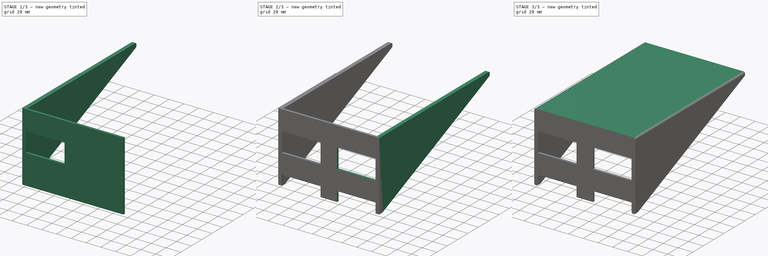
[diagram: build sequence overview — one tinted view per stage of 3, left to right]
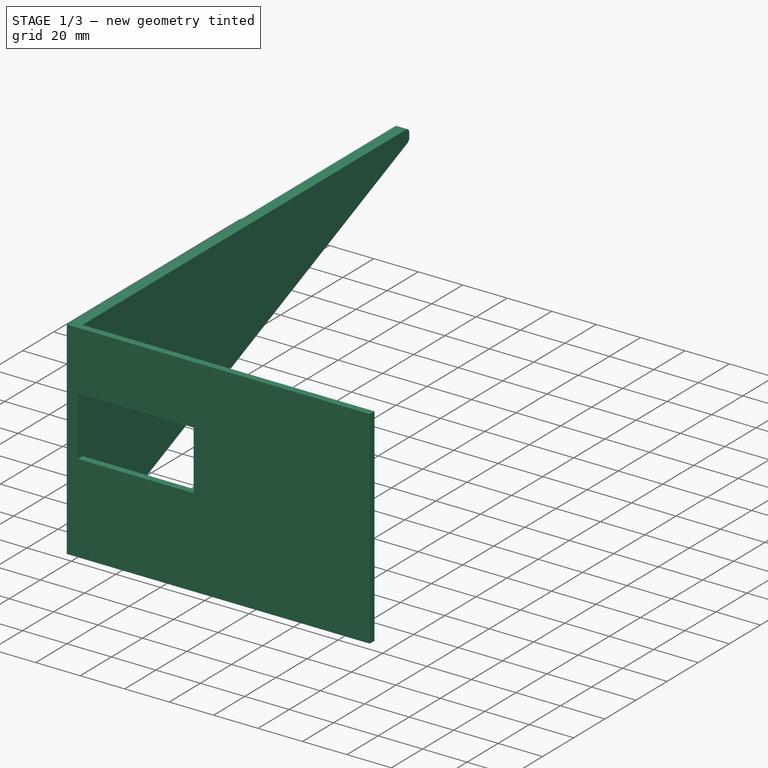
[diagram: stage 1 of 3 — iso view after this stage's code; geometry added in this stage tinted green]
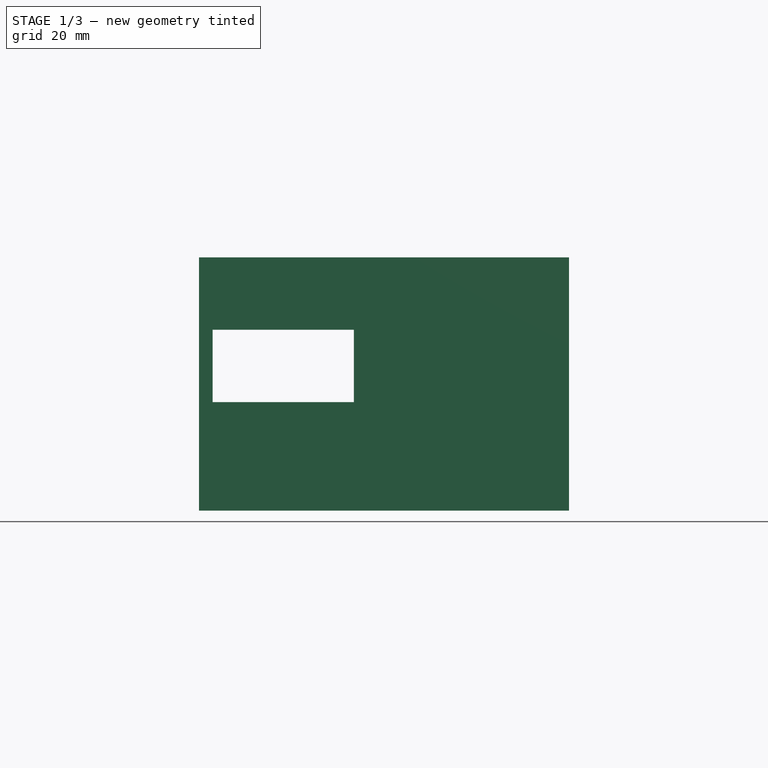
[diagram: stage 1 of 3 — front view after this stage's code; geometry added in this stage tinted green]
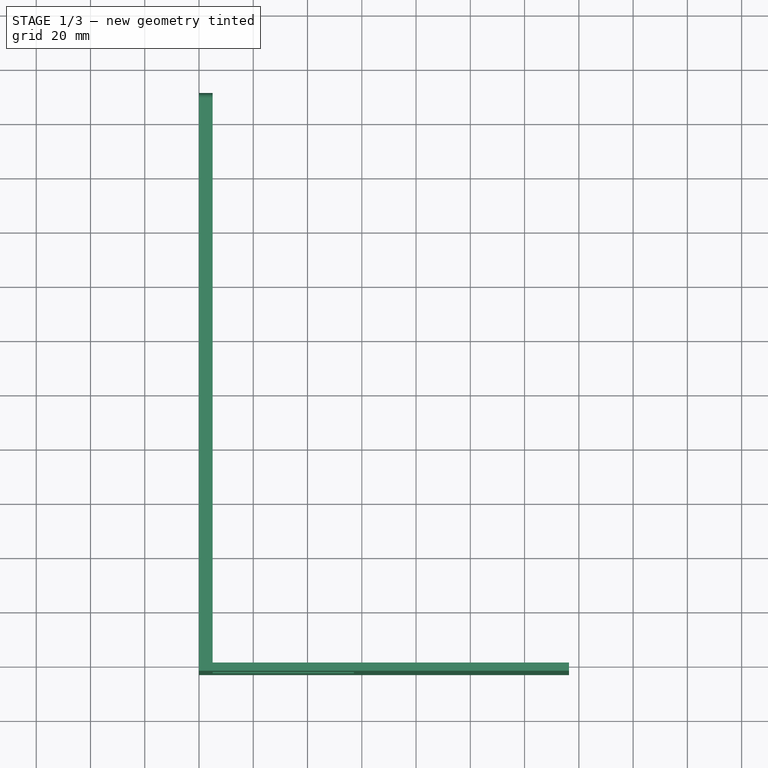
[diagram: stage 1 of 3 — top view after this stage's code; geometry added in this stage tinted green]
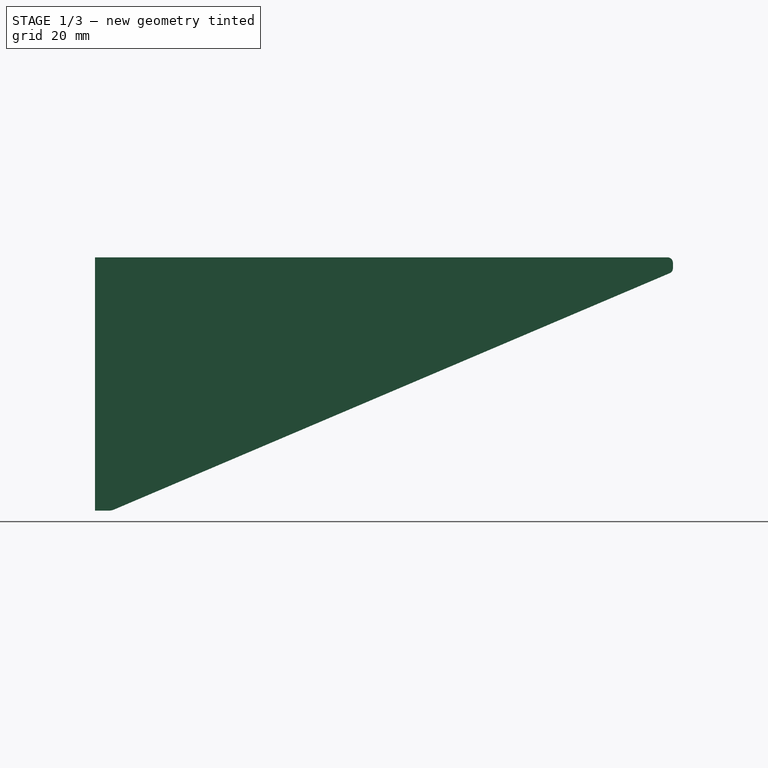
[diagram: stage 1 of 3 — right view after this stage's code; geometry added in this stage tinted green]
FCSTD DOCUMENT  (FreeCAD 0.19R24291 (Git))
Label: SecureItParameterizedShelf
License: All rights reserved
LicenseURL: http://en.wikipedia.org/wiki/All_rights_reserved
objects: Sketcher::SketchObject×4, PartDesign::Pad×3, PartDesign::LinearPattern×3, PartDesign::MultiTransform×2, PartDesign::Fillet×2, Spreadsheet::Sheet×1, PartDesign::Pocket×1, PartDesign::Body×1
note: 22 computed .brp shape members not serialized (recipe doc carries the construction recipe); baked Part::Feature solids carry a one-line shape summary decoded from their .brp

FEATURE [Spreadsheet::Sheet] Spreadsheet  label="Settings"
  cells = A1=ShelfDepth; B1(ShelfDepth)=210; D1=TightTolerance; E1(TightTolerance)==0.2mm; G1=SecureItSlotWidth; H1(SecureItSlotWidth)==2.05in; A2=ShelfWidthInInterfaces; B2(ShelfWidthInInterfaces)=2; D2=LooseTolerance; E2(LooseTolerance)==0.3mm; G2=SecureItSlotHeight; H2(SecureItSlotHeight)==1.05in; A3=ShelfHeighInInterfaces; B3(ShelfHeighInInterfaces)=2; D3=StandardFillet; E3(StandardFillet)==2mm; G3=SecureItSlotThickness; H3(SecureItSlotThickness)==3mm; A4=ShelfThickness; B4(ShelfThickness)==6mm; D4=LargeFillet; E4(LargeFillet)==5mm; G4=SecureItSlotGapVertical; H4(SecureItSlotGapVertical)==1.05in; A5=StrutThickness; B5(StrutThickness)==5mm; G5=SecureItSlotGapHorizontal; H5(SecureItSlotGapHorizontal)==0.875in / 2; A6=StrutBottomDepth; B6(StrutBottomDepth)==4mm; A7=StrutLowerLengthBeforeCurve; B7(StrutLowerLengthBeforeCurve)==20mm; A8=StrutUpperLengthBeforeCurve; B8(StrutUpperLengthBeforeCurve)==150mm; A9=StruthCurveRadius; B9(StruthCurveRadius)==200mm
FEATURE [Sketcher::SketchObject] Sketch  label="SafeInterfaceSurfaceSketch"
  FullyConstrained = true
  MapMode = 5
  Placement = pos=(0,0,0) rot=(1,0,0;1.5708rad)
  Support = -> [XZ_Plane]
  expr: .Constraints.ShelfHeight = <<Settings>>.ShelfHeighInInterfaces * Spreadsheet.SecureItSlotGapVertical + (<<Settings>>.ShelfHeighInInterfaces - 1) * <<Settings>>.SecureItSlotHeight + <<Settings>>.SecureItSlotHeight / 2
  expr: .Constraints.InterfaceSingleWidth = <<Settings>>.SecureItSlotWidth * <<Settings>>.ShelfWidthInInterfaces + <<Settings>>.SecureItSlotGapHorizontal * 2 * (<<Settings>>.ShelfWidthInInterfaces - 1) + <<Settings>>.StrutThickness * 2
  sketch-geometry (4):
    g0: LineSegment StartX=0 StartY=0 StartZ=0 EndX=136.365 EndY=0 EndZ=0
    g1: LineSegment StartX=136.365 StartY=0 StartZ=0 EndX=136.365 EndY=-93.345 EndZ=0
    g2: LineSegment StartX=136.365 StartY=-93.345 StartZ=0 EndX=0 EndY=-93.345 EndZ=0
    g3: LineSegment StartX=0 StartY=-93.345 StartZ=0 EndX=0 EndY=0 EndZ=0
  constraints (11):
    c: Coincident(g0,g1)
    c: Coincident(g1,g2)
    c: Coincident(g2,g3)
    c: Coincident(g3,g0)
    c: Horizontal(g0)
    c: Horizontal(g2)
    c: Vertical(g1)
    c: Vertical(g3)
    c: Coincident(g0,g-1)
    c: DistanceY(g3,g3) = 93.345  'ShelfHeight'
    c: DistanceX(g0,g0) = 136.365  'InterfaceSingleWidth'
FEATURE [PartDesign::Pad] Pad  label="SafeInterfaceSurfacePad"
  Direction = (1,1,1)
  Length = 3
  Length2 = 100
  Placement = pos=(0,0,0) rot=(1,0,0;1.5708rad)
  Profile = -> Sketch
  Type = 0
  expr: Length = <<Settings>>.SecureItSlotThickness
FEATURE [Sketcher::SketchObject] Sketch001  label="SafeInterfaceSlotHoleSketch"
  FullyConstrained = true
  MapMode = 5
  Placement = pos=(0,0,0) rot=(1,0,0;1.5708rad)
  Support = -> [XZ_Plane]
  expr: Constraints[8] = <<Settings>>.SecureItSlotWidth
  expr: Constraints[9] = <<Settings>>.SecureItSlotHeight
  expr: Constraints[10] = <<Settings>>.StrutThickness
  expr: Constraints[11] = <<Settings>>.SecureItSlotGapVertical
  sketch-geometry (4):
    g0: LineSegment StartX=5 StartY=-26.67 StartZ=0 EndX=57.07 EndY=-26.67 EndZ=0
    g1: LineSegment StartX=57.07 StartY=-26.67 StartZ=0 EndX=57.07 EndY=-53.34 EndZ=0
    g2: LineSegment StartX=57.07 StartY=-53.34 StartZ=0 EndX=5 EndY=-53.34 EndZ=0
    g3: LineSegment StartX=5 StartY=-53.34 StartZ=0 EndX=5 EndY=-26.67 EndZ=0
  constraints (12):
    c: Coincident(g0,g1)
    c: Coincident(g1,g2)
    c: Coincident(g2,g3)
    c: Coincident(g3,g0)
    c: Horizontal(g0)
    c: Horizontal(g2)
    c: Vertical(g1)
    c: Vertical(g3)
    c: DistanceX(g0,g0) = 52.07
    c: DistanceY(g1,g1) = 26.67
    c: DistanceX(g-1,g0) = 5
    c: DistanceY(g0,g-1) = 26.67
FEATURE [Sketcher::SketchObject] Sketch002  label="ShelfTopSketch"
  FullyConstrained = true
  MapMode = 5
  Placement = pos=(0,0,0) rot=(0.57735,0.57735,0.57735;2.0944rad)
  Support = -> [YZ_Plane]
  expr: Constraints[6] = <<Settings>>.ShelfDepth
  expr: Constraints[7] = <<Settings>>.ShelfThickness
  expr: Constraints[22] = <<Settings>>.StandardFillet
  sketch-geometry (11):
    g0: LineSegment StartX=0 StartY=-2.24e-14 StartZ=0 EndX=208 EndY=-2.24e-14 EndZ=0
    g1: LineSegment StartX=208 StartY=-6 StartZ=0 EndX=0 EndY=-6 EndZ=0
    g2: LineSegment StartX=0 StartY=-6 StartZ=0 EndX=0 EndY=-2.22e-14 EndZ=0
    g3: GeomPoint X=210 Y=0 Z=0
    g4: LineSegment StartX=210 StartY=-4 StartZ=0 EndX=210 EndY=-2 EndZ=0
    g5: LineSegment StartX=208 StartY=-2.24e-14 StartZ=0 EndX=210 EndY=0 EndZ=0
    g6: LineSegment StartX=210 StartY=0 StartZ=0 EndX=210 EndY=-2 EndZ=0
    g7: LineSegment StartX=210 StartY=-4 StartZ=0 EndX=210 EndY=-6 EndZ=0
    g8: LineSegment StartX=208 StartY=-6 StartZ=0 EndX=210 EndY=-6 EndZ=0
    g9: ArcOfCircle CenterX=208 CenterY=-2 CenterZ=0 NormalX=0 NormalY=0 NormalZ=1 AngleXU=0 Radius=2 StartAngle=0 EndAngle=1.5708
    g10: ArcOfCircle CenterX=208 CenterY=-4 CenterZ=0 NormalX=0 NormalY=0 NormalZ=1 AngleXU=0 Radius=2 StartAngle=4.71239 EndAngle=6.28319
  constraints (28):
    c: Coincident(g1,g2)
    c: Coincident(g2,g0)
    c: Horizontal(g0)
    c: Horizontal(g1)
    c: Vertical(g2)
    c: Coincident(g0,g-1)
    c: DistanceX(g0,g3) = 210
    c: DistanceY(g1,g0) = 6
    c: Vertical(g4)
    c: PointOnObject(g3,g4)
    c: PointOnObject(g3,g-1)
    c: Coincident(g5,g0)
    c: Coincident(g5,g3)
    c: Coincident(g6,g3)
    c: Coincident(g6,g4)
    c: Coincident(g7,g4)
    c: Coincident(g8,g1)
    c: Coincident(g8,g7)
    c: Vertical(g7)
    c: Equal(g7,g6)
    c: Equal(g6,g5)
    c: Equal(g5,g8)
    c: DistanceY(g7,g7) = 2
    c: Horizontal(g8)
    c: Coincident(g9,g0)
    c: Coincident(g10,g4)
    c: Tangent(g1,g10) = 1.5708
    c: Tangent(g9,g4) = -1.5708
FEATURE [Sketcher::SketchObject] Sketch003  label="ShelfStrutSketch"
  FullyConstrained = true
  MapMode = 5
  Placement = pos=(0,0,0) rot=(0.57735,0.57735,0.57735;2.0944rad)
  Support = -> [YZ_Plane]
  expr: Constraints[37] = <<Settings>>.LargeFillet
  expr: Constraints[7] = <<SafeInterfaceSurfaceSketch>>.Constraints.ShelfHeight
  expr: Constraints[11] = <<Settings>>.StrutBottomDepth
  expr: Constraints[8] = <<Settings>>.ShelfDepth
  expr: Constraints[26] = <<Settings>>.StandardFillet
  expr: Constraints[27] = <<Settings>>.ShelfThickness
  sketch-geometry (15):
    g0: LineSegment StartX=0 StartY=0 StartZ=0 EndX=208 EndY=0 EndZ=0
    g1: LineSegment StartX=2.04291 StartY=-93.345 StartZ=0 EndX=0 EndY=-93.345 EndZ=0
    g2: LineSegment StartX=0 StartY=-93.345 StartZ=0 EndX=0 EndY=0 EndZ=0
    g3: LineSegment StartX=210 StartY=-4 StartZ=0 EndX=210 EndY=-2 EndZ=0
    g4: LineSegment StartX=0 StartY=-6 StartZ=0 EndX=208 EndY=-6 EndZ=0
    g5: GeomPoint X=4 Y=-93.345 Z=0
    g6: ArcOfCircle CenterX=208 CenterY=-2 CenterZ=0 NormalX=0 NormalY=0 NormalZ=1 AngleXU=0 Radius=2 StartAngle=0 EndAngle=1.5708
    g7: LineSegment StartX=208 StartY=0 StartZ=0 EndX=210 EndY=0 EndZ=0
    g8: LineSegment StartX=210 StartY=0 StartZ=0 EndX=210 EndY=-2 EndZ=0
    g9: LineSegment StartX=210 StartY=-6 StartZ=0 EndX=210 EndY=-4 EndZ=0
    g10: LineSegment StartX=208 StartY=-6 StartZ=0 EndX=210 EndY=-6 EndZ=0
    g11: ArcOfCircle CenterX=208 CenterY=-4 CenterZ=0 NormalX=0 NormalY=0 NormalZ=1 AngleXU=0 Radius=2 StartAngle=4.71239 EndAngle=6.28319
    g12: LineSegment StartX=4 StartY=-92.9461 StartZ=0 EndX=208.783 EndY=-5.84043 EndZ=0
    g13: ArcOfCircle CenterX=208 CenterY=-4 CenterZ=0 NormalX=0 NormalY=0 NormalZ=1 AngleXU=0 Radius=2 StartAngle=5.11456 EndAngle=6.28319
    g14: ArcOfCircle CenterX=2.04291 CenterY=-88.345 CenterZ=0 NormalX=0 NormalY=0 NormalZ=1 AngleXU=0 Radius=5 StartAngle=4.71239 EndAngle=5.11456
  constraints (38):
    c: Coincident(g1,g2)
    c: Coincident(g2,g0)
    c: Horizontal(g0)
    c: Horizontal(g1)
    c: Vertical(g2)
    c: Coincident(g0,g-1)
    c: Vertical(g3)
    c: DistanceY(g2,g2) = 93.345
    c: DistanceX(g0,g3) = 210
    c: PointOnObject(g4,g2)
    c: Horizontal(g4)
    c: DistanceX(g1,g5) = 4
    c: Tangent(g6,g3) = -1.5708
    c: Tangent(g6,g0) = 1.5708
    c: Coincident(g7,g0)
    c: PointOnObject(g7,g-1)
    c: Coincident(g8,g7)
    c: Coincident(g8,g3)
    c: Vertical(g8)
    c: PointOnObject(g9,g4)
    c: Coincident(g9,g3)
    c: Vertical(g9)
    c: Coincident(g10,g4)
    c: Coincident(g10,g9)
    c: Equal(g10,g9)
    c: Equal(g9,g8)
    c: DistanceX(g7,g7) = 2
    c: DistanceY(g4,g0) = 6
    c: Coincident(g11,g4)
    c: Tangent(g11,g3) = -1.5708
    c: Horizontal(g5,g1)
    c: Coincident(g13,g11)
    c: Coincident(g13,g3)
    c: Tangent(g13,g12) = -1.5708
    c: Tangent(g14,g12) = -1.5708
    c: Tangent(g14,g1) = 1.5708
    c: Vertical(g5,g12)
    c: Radius(g14) = 5
FEATURE [PartDesign::Pad] Pad002  label="ShelfStrutPad"
  BaseFeature = -> Pad
  Direction = (1,1,1)
  Length = 5
  Length2 = 100
  Placement = pos=(0,0,0) rot=(1,0,0;1.5708rad)
  Profile = -> Sketch003
  Type = 0
  expr: Length = <<Settings>>.StrutThickness
FEATURE [PartDesign::Pocket] Pocket  label="SafeInterfaceSlotHolePocket"
  BaseFeature = -> Pad002
  Length = 5
  Length2 = 100
  Midplane = true
  Placement = pos=(0,0,0) rot=(1,0,0;1.5708rad)
  Profile = -> Sketch001
  Type = 1
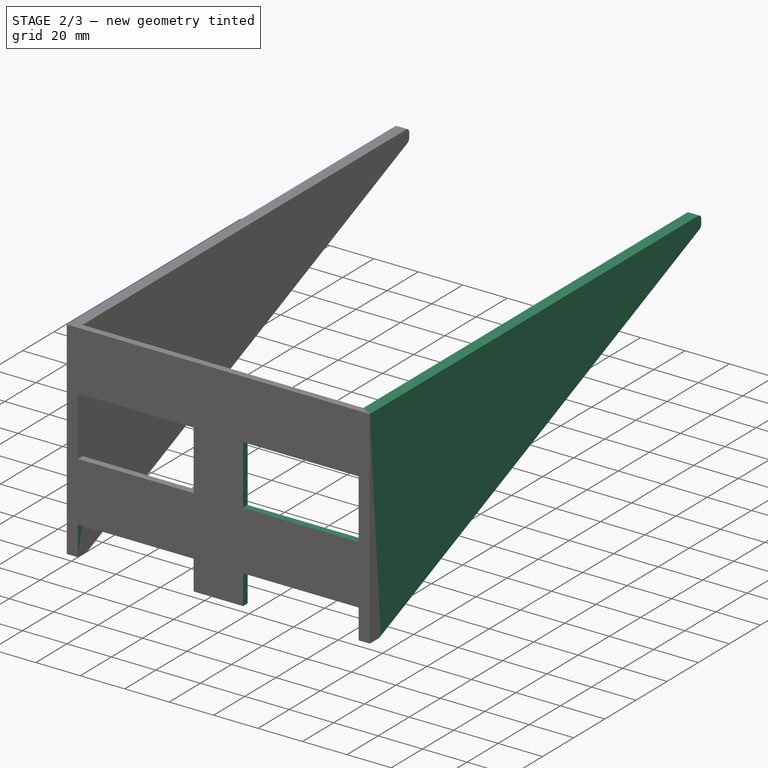
[diagram: stage 2 of 3 — iso view after this stage's code; geometry added in this stage tinted green]
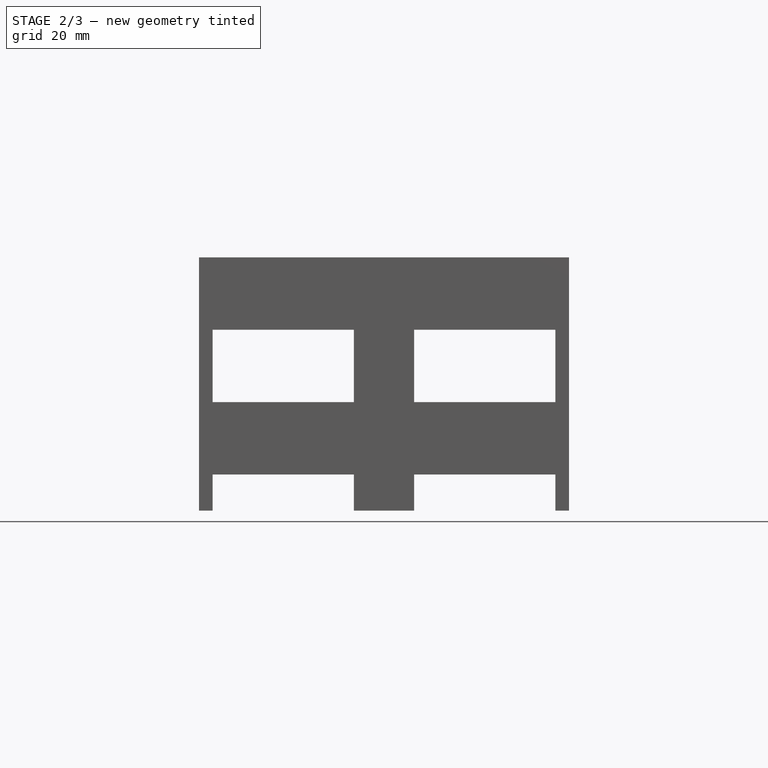
[diagram: stage 2 of 3 — front view after this stage's code; geometry added in this stage tinted green]
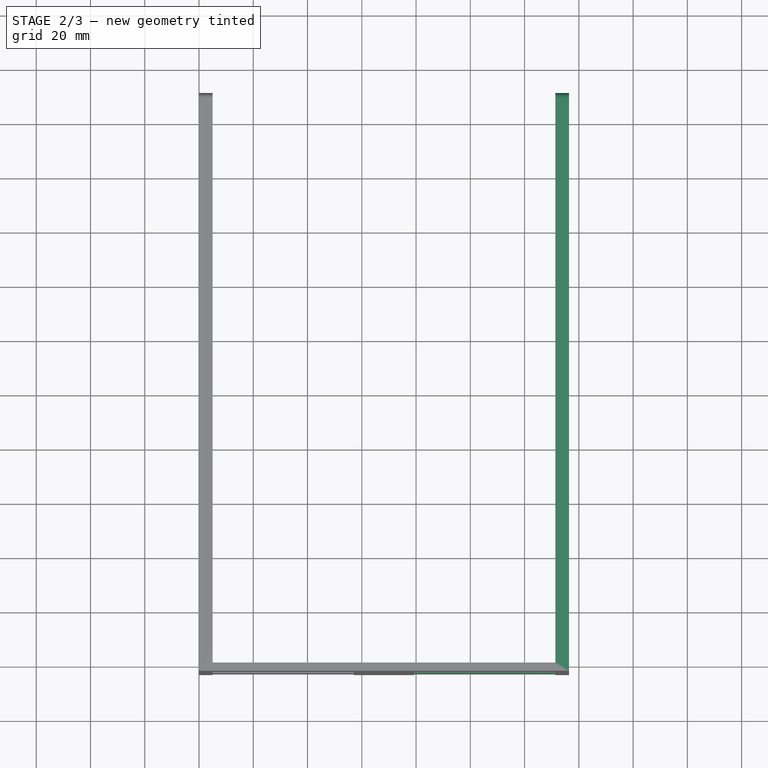
[diagram: stage 2 of 3 — top view after this stage's code; geometry added in this stage tinted green]
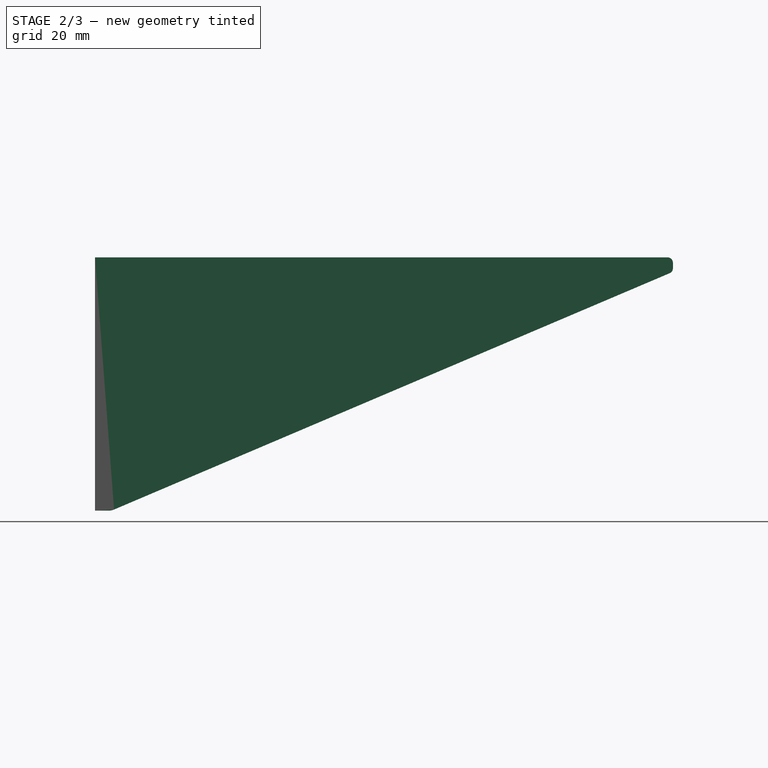
[diagram: stage 2 of 3 — right view after this stage's code; geometry added in this stage tinted green]
FEATURE [PartDesign::LinearPattern] LinearPattern  label="InterfaceSlotVerticalPattern"
  Direction = -> Z_Axis
  Length = 53.34
  Occurrences = 2
  Placement = pos=(0,0,0) rot=(1,0,0;1.5708rad)
  Reversed = true
  expr: Length = (<<Settings>>.ShelfHeighInInterfaces - 1) * (<<Settings>>.SecureItSlotGapVertical + <<Settings>>.SecureItSlotHeight)
  expr: Occurrences = <<Settings>>.ShelfHeighInInterfaces
FEATURE [PartDesign::LinearPattern] LinearPattern002  label="InterfaceSlotHorizontalPattern"
  Direction = -> X_Axis
  Length = 74.295
  Occurrences = 2
  Placement = pos=(0,0,0) rot=(1,0,0;1.5708rad)
  expr: Occurrences = <<Settings>>.ShelfWidthInInterfaces
  expr: Length = (<<Settings>>.ShelfWidthInInterfaces - 1) * (<<Settings>>.SecureItSlotGapHorizontal * 2 + <<Settings>>.SecureItSlotWidth)
FEATURE [PartDesign::MultiTransform] MultiTransform  label="InterfaceSlotMultiPattern"
  BaseFeature = -> Pocket
  Originals = -> [Pocket]
  Placement = pos=(0,0,0) rot=(1,0,0;1.5708rad)
  Transformations = -> [LinearPattern,LinearPattern002]
FEATURE [PartDesign::LinearPattern] LinearPattern003  label="StrutBasePattern"
  Direction = -> X_Axis
  Length = 131.365
  Occurrences = 2
  Placement = pos=(0,0,0) rot=(1,0,0;1.5708rad)
  expr: Length = <<SafeInterfaceSurfaceSketch>>.Constraints.InterfaceSingleWidth - <<Settings>>.StrutThickness
  expr: Occurrences = <<Settings>>.ShelfWidthInInterfaces / 2 + 1
FEATURE [PartDesign::MultiTransform] MultiTransform001  label="StrutMultiPattern"
  BaseFeature = -> MultiTransform
  Originals = -> [Pad002]
  Placement = pos=(0,0,0) rot=(1,0,0;1.5708rad)
  Refine = true
  Transformations = -> [LinearPattern003]
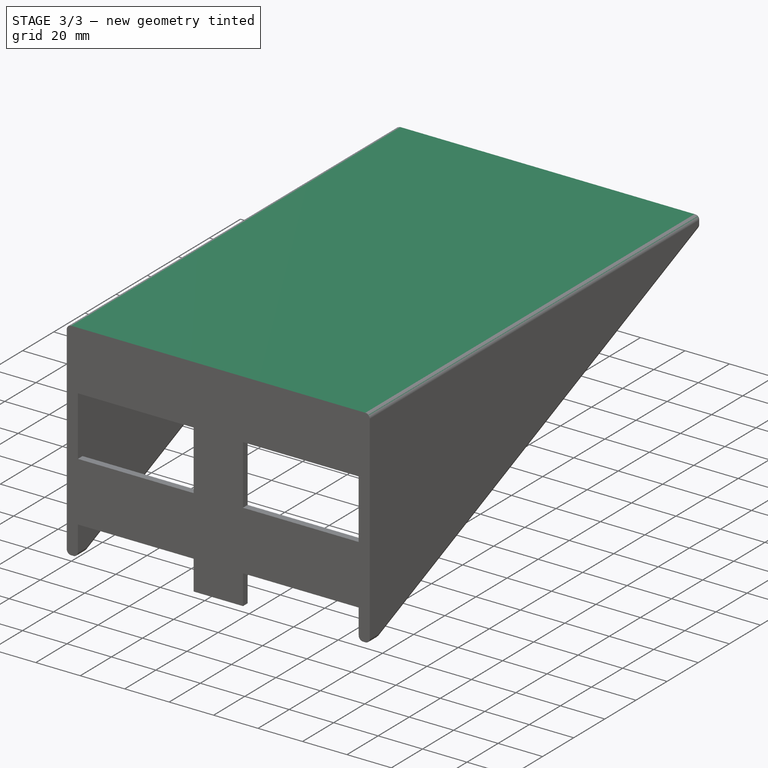
[diagram: stage 3 of 3 — iso view after this stage's code; geometry added in this stage tinted green]
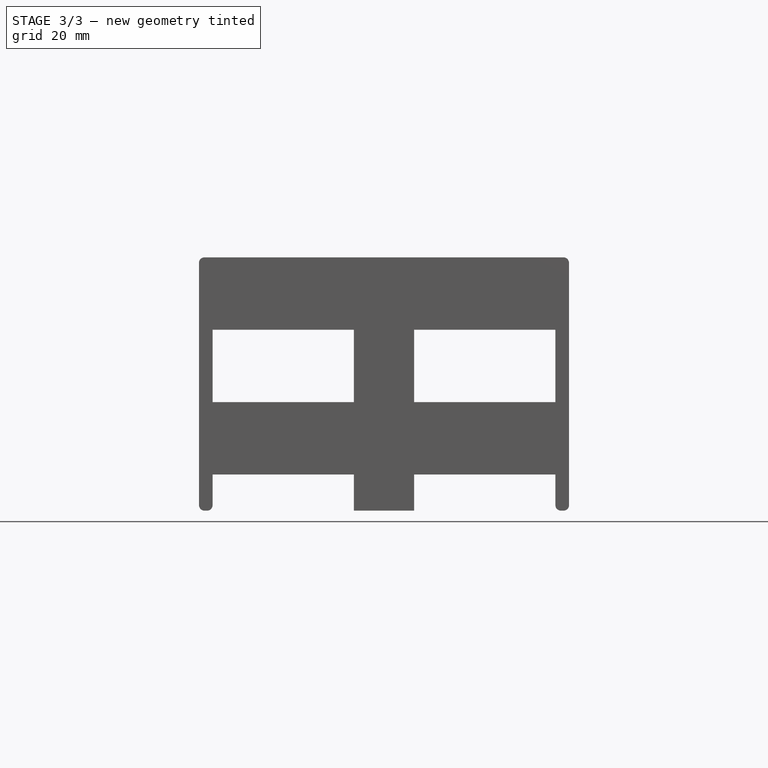
[diagram: stage 3 of 3 — front view after this stage's code; geometry added in this stage tinted green]
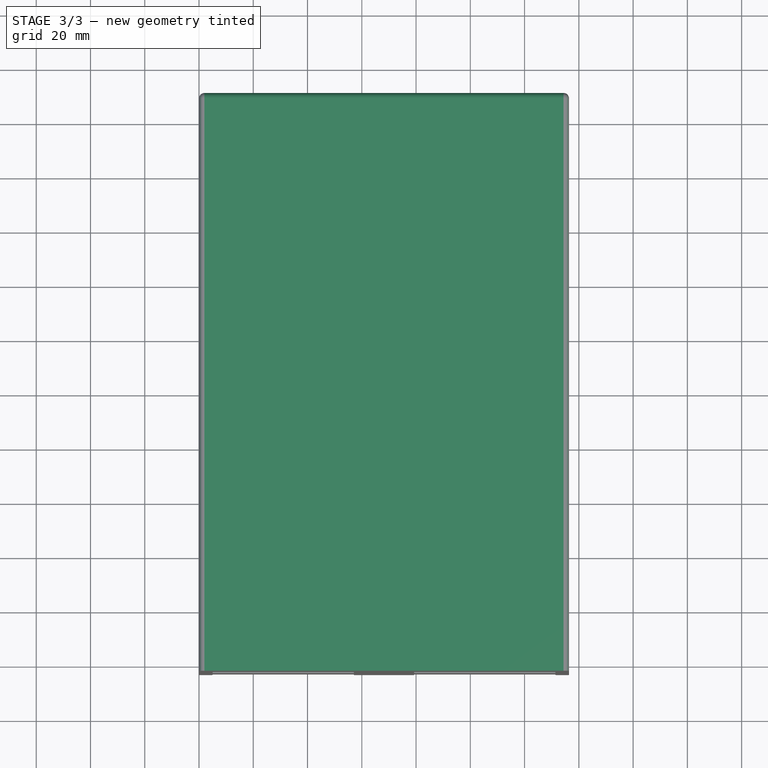
[diagram: stage 3 of 3 — top view after this stage's code; geometry added in this stage tinted green]
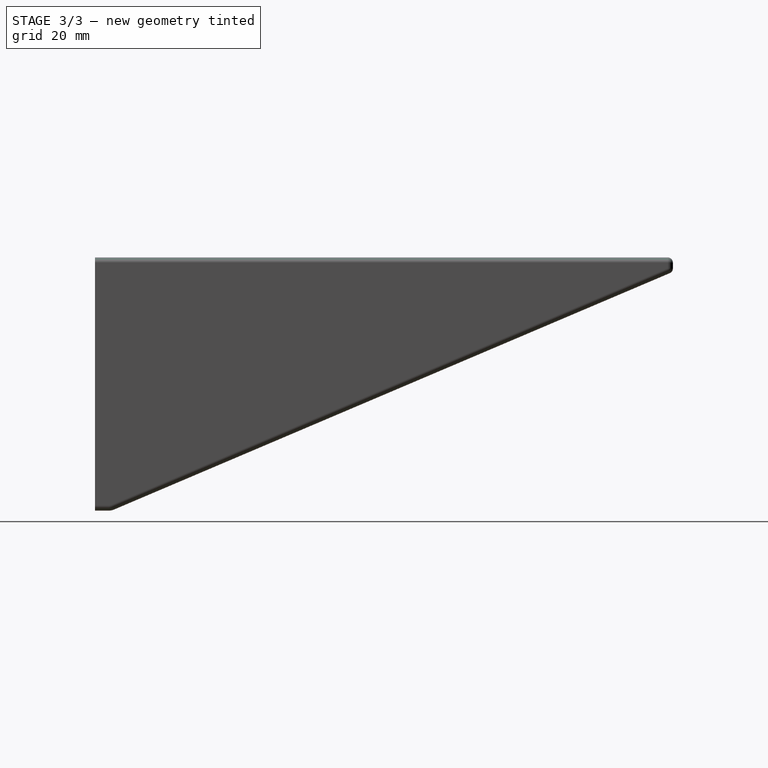
[diagram: stage 3 of 3 — right view after this stage's code; geometry added in this stage tinted green]
FEATURE [PartDesign::Fillet] Fillet  label="StrutInnerFillet"
  Base = -> MultiTransform001 [Edge61,Edge77]
  BaseFeature = -> MultiTransform001
  Placement = pos=(0,0,0) rot=(1,0,0;1.5708rad)
  Radius = 2
  Refine = true
  SupportTransform = false
FEATURE [PartDesign::Pad] Pad003  label="ShelfTopPad"
  BaseFeature = -> Fillet
  Direction = (1,1,1)
  Length = 136.365
  Length2 = 100
  Placement = pos=(0,0,0) rot=(1,0,0;1.5708rad)
  Profile = -> Sketch002
  Refine = true
  Type = 0
  expr: Length = <<SafeInterfaceSurfaceSketch>>.Constraints.InterfaceSingleWidth
FEATURE [PartDesign::Fillet] Fillet001  label="StrutOuterPad"
  Base = -> Pad003 [Edge95,Edge90]
  BaseFeature = -> Pad003
  Placement = pos=(0,0,0) rot=(1,0,0;1.5708rad)
  Radius = 2
  Refine = true
  SupportTransform = false
FEATURE [PartDesign::Body] Body  label="2x2 - No Center Strut"
  Group = -> [Sketch,Pad,Sketch001,Sketch002,Sketch003,Pad002,Pocket,MultiTransform,LinearPattern,LinearPattern002,MultiTransform001,LinearPattern003,Fillet,Pad003,Fillet001]
  Origin = -> Origin
  Tip = -> Fillet001
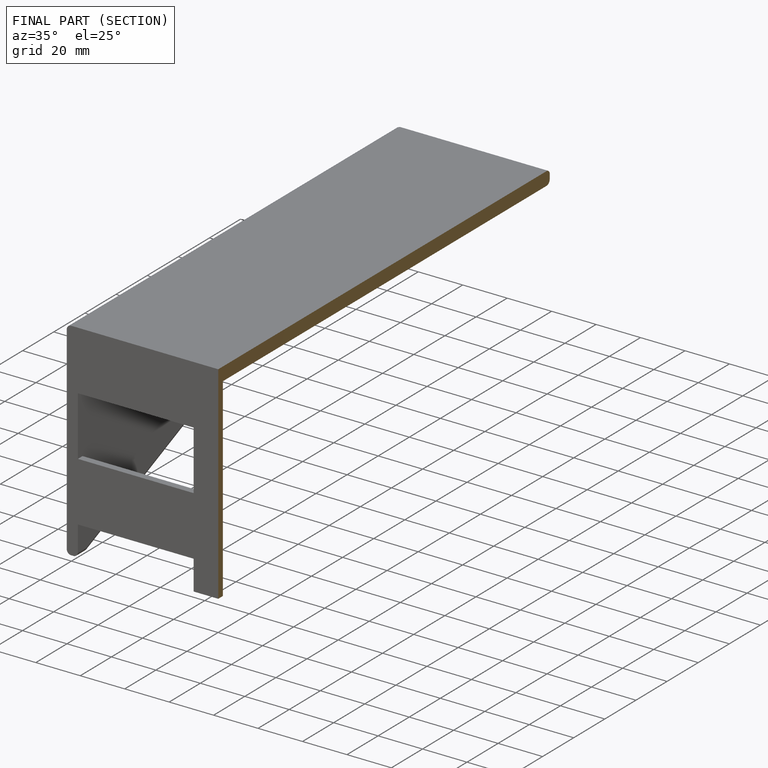
[diagram: finished part — half-section view (interior)]
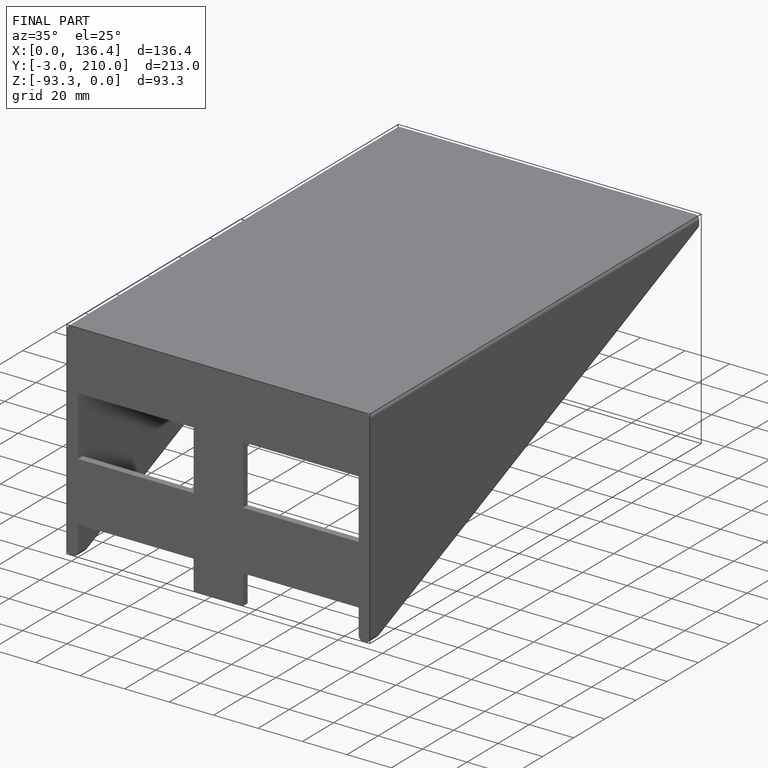
[diagram: finished part — iso view with bounding-box wireframe]
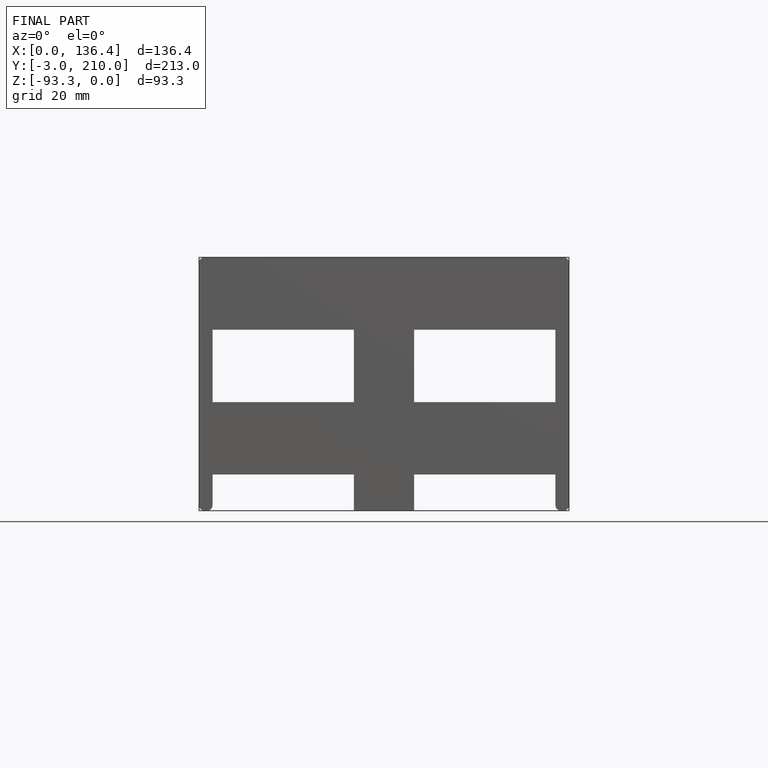
[diagram: finished part — front view with bounding-box wireframe]
